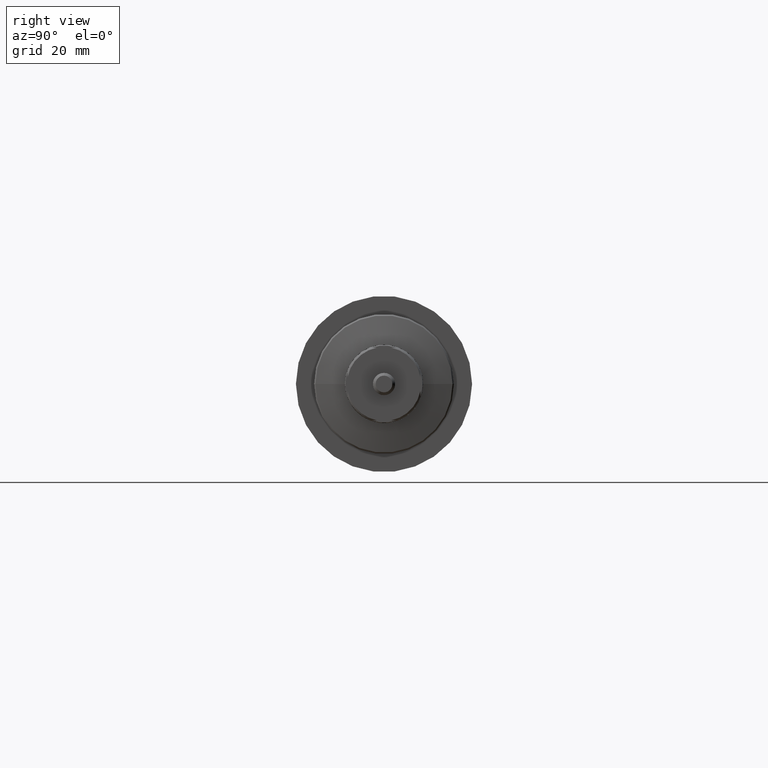
[diagram: clean part render]
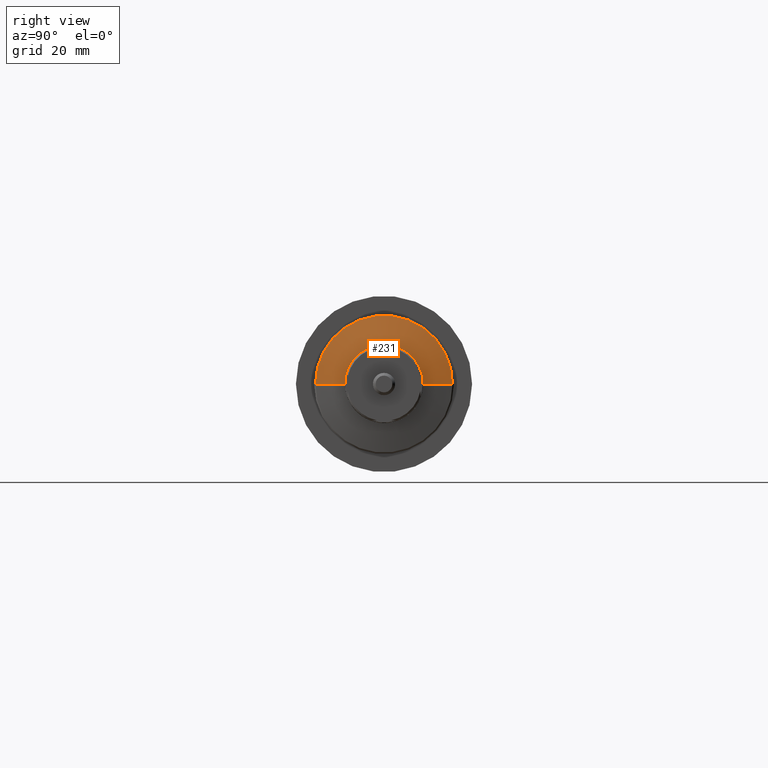
[diagram: same view with one face highlighted and labeled with its STEP entity id]
A machine part, right view. The second image highlights one B-rep face of the part: STEP entity #231.
In plain terms, the highlighted conical surface has half-angle 78.241 deg.
Its self-contained STEP definition (entity closure, byte-faithful):
#8 = DIRECTION ( 'NONE',  ( -1.000000000000000000, -1.931394410353556421E-15, 0.000000000000000000 ) ) ;
#139 = CARTESIAN_POINT ( 'NONE',  ( -5.100000000000759037, 24.50000000000006750, 3.000384657911017441E-15 ) ) ;
#231 = ADVANCED_FACE ( 'NONE', ( #2481 ), #1694, .T. ) ;
#304 = DIRECTION ( 'NONE',  ( 1.920586705545750655E-15, -1.000000000000000000, 0.000000000000000000 ) ) ;
#315 = CARTESIAN_POINT ( 'NONE',  ( -2.914285714286113826, 5.285403157867643656E-14, 0.000000000000000000 ) ) ;
#373 = DIRECTION ( 'NONE',  ( 1.947138595484169474E-15, -1.000000000000000000, 0.000000000000000000 ) ) ;
#383 = EDGE_CURVE ( 'NONE', #821, #2198, #2697, .T. ) ;
#426 = ORIENTED_EDGE ( 'NONE', *, *, #992, .T. ) ;
#543 = CIRCLE ( 'NONE', #2464, 14.00000000000000178 ) ;
#565 = EDGE_CURVE ( 'NONE', #1513, #821, #543, .T. ) ;
#669 = VERTEX_POINT ( 'NONE', #139 ) ;
#711 = CARTESIAN_POINT ( 'NONE',  ( -2.914285714286140472, 14.00000000000005329, 2.357445088358656335E-15 ) ) ;
#748 = CARTESIAN_POINT ( 'NONE',  ( -5.100000000000711964, 4.863255522461734884E-14, 0.000000000000000000 ) ) ;
#769 = AXIS2_PLACEMENT_3D ( 'NONE', #1668, #1004, #373 ) ;
#821 = VERTEX_POINT ( 'NONE', #2539 ) ;
#920 = VECTOR ( 'NONE', #2405, 1000.000000000000114 ) ;
#966 = DIRECTION ( 'NONE',  ( -1.000000000000000000, -1.931394410353556421E-15, 0.000000000000000000 ) ) ;
#992 = EDGE_CURVE ( 'NONE', #669, #2350, #1702, .T. ) ;
#1004 = DIRECTION ( 'NONE',  ( -1.000000000000000000, -1.931394410353556421E-15, 0.000000000000000000 ) ) ;
#1113 = CARTESIAN_POINT ( 'NONE',  ( -2.914285714286086737, -13.99999999999995026, 0.000000000000000000 ) ) ;
#1138 = ORIENTED_EDGE ( 'NONE', *, *, #565, .T. ) ;
#1245 = ORIENTED_EDGE ( 'NONE', *, *, #2037, .F. ) ;
#1370 = EDGE_CURVE ( 'NONE', #2198, #669, #1450, .T. ) ;
#1371 = DIRECTION ( 'NONE',  ( 1.000000000000000000, 1.931394410353556421E-15, -0.000000000000000000 ) ) ;
#1385 = CARTESIAN_POINT ( 'NONE',  ( -5.100000000000664002, -24.49999999999997513, 0.000000000000000000 ) ) ;
#1450 = LINE ( 'NONE', #2314, #1617 ) ;
#1464 = ORIENTED_EDGE ( 'NONE', *, *, #383, .T. ) ;
#1509 = CARTESIAN_POINT ( 'NONE',  ( -2.914285714286113826, 5.285403157867643656E-14, 0.000000000000000000 ) ) ;
#1513 = VERTEX_POINT ( 'NONE', #1113 ) ;
#1563 = DIRECTION ( 'NONE',  ( -1.947138595484169474E-15, 1.000000000000000000, 0.000000000000000000 ) ) ;
#1617 = VECTOR ( 'NONE', #1695, 999.9999999999998863 ) ;
#1668 = CARTESIAN_POINT ( 'NONE',  ( -5.100000000000711964, 4.863255522461734884E-14, 0.000000000000000000 ) ) ;
#1694 = CONICAL_SURFACE ( 'NONE', #769, 24.50000000000002132, 1.365563936788661614 ) ;
#1695 = DIRECTION ( 'NONE',  ( -0.2037946783941950168, 0.9790136511092206728, 1.198945934152471440E-16 ) ) ;
#1702 = CIRCLE ( 'NONE', #1926, 24.50000000000002132 ) ;
#1926 = AXIS2_PLACEMENT_3D ( 'NONE', #748, #1371, #1563 ) ;
#1966 = DIRECTION ( 'NONE',  ( 1.920586705545750655E-15, -1.000000000000000000, 0.000000000000000000 ) ) ;
#2037 = EDGE_CURVE ( 'NONE', #1513, #2350, #2134, .T. ) ;
#2049 = AXIS2_PLACEMENT_3D ( 'NONE', #1509, #8, #1966 ) ;
#2134 = LINE ( 'NONE', #2154, #920 ) ;
#2154 = CARTESIAN_POINT ( 'NONE',  ( -5.100000000000664002, -24.49999999999997158, 0.000000000000000000 ) ) ;
#2198 = VERTEX_POINT ( 'NONE', #711 ) ;
#2314 = CARTESIAN_POINT ( 'NONE',  ( -5.100000000000759037, 24.50000000000007105, 3.000384657911017835E-15 ) ) ;
#2350 = VERTEX_POINT ( 'NONE', #1385 ) ;
#2405 = DIRECTION ( 'NONE',  ( -0.2037946783941911866, -0.9790136511092213389, 0.000000000000000000 ) ) ;
#2464 = AXIS2_PLACEMENT_3D ( 'NONE', #315, #966, #304 ) ;
#2481 = FACE_OUTER_BOUND ( 'NONE', #2625, .T. ) ;
#2539 = CARTESIAN_POINT ( 'NONE',  ( -2.914285714286113826, 1.714505518806296807E-15, 14.00000000000000178 ) ) ;
#2625 = EDGE_LOOP ( 'NONE', ( #1138, #1464, #2673, #426, #1245 ) ) ;
#2673 = ORIENTED_EDGE ( 'NONE', *, *, #1370, .T. ) ;
#2697 = CIRCLE ( 'NONE', #2049, 14.00000000000000178 ) ;